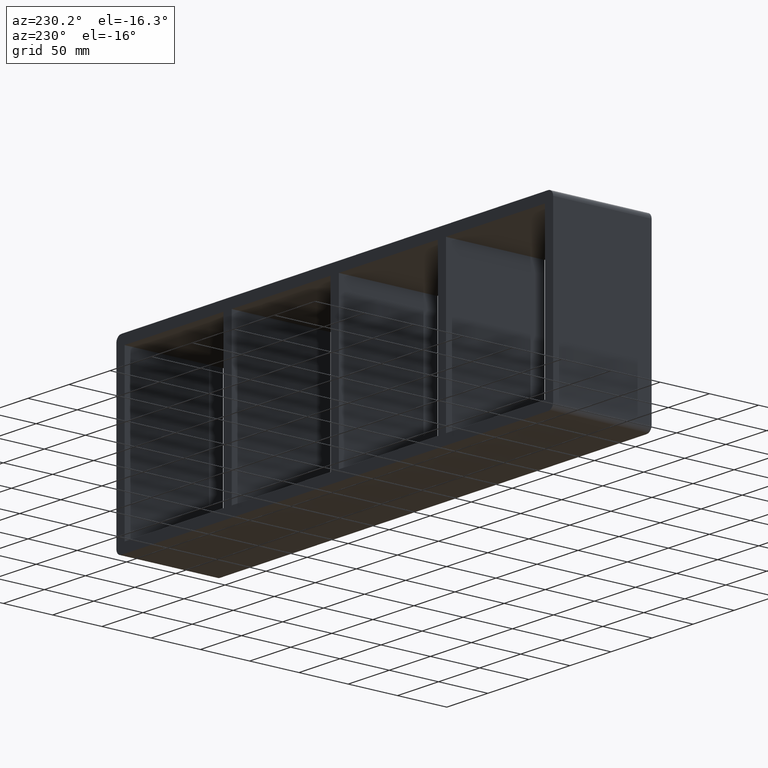
[diagram: clean part render]
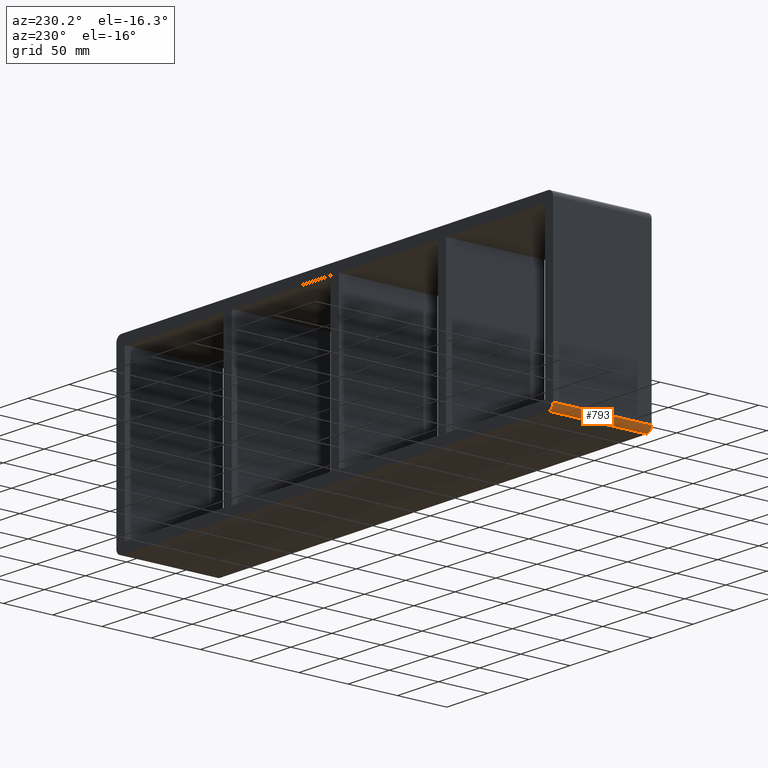
[diagram: same view with one face highlighted and labeled with its STEP entity id]
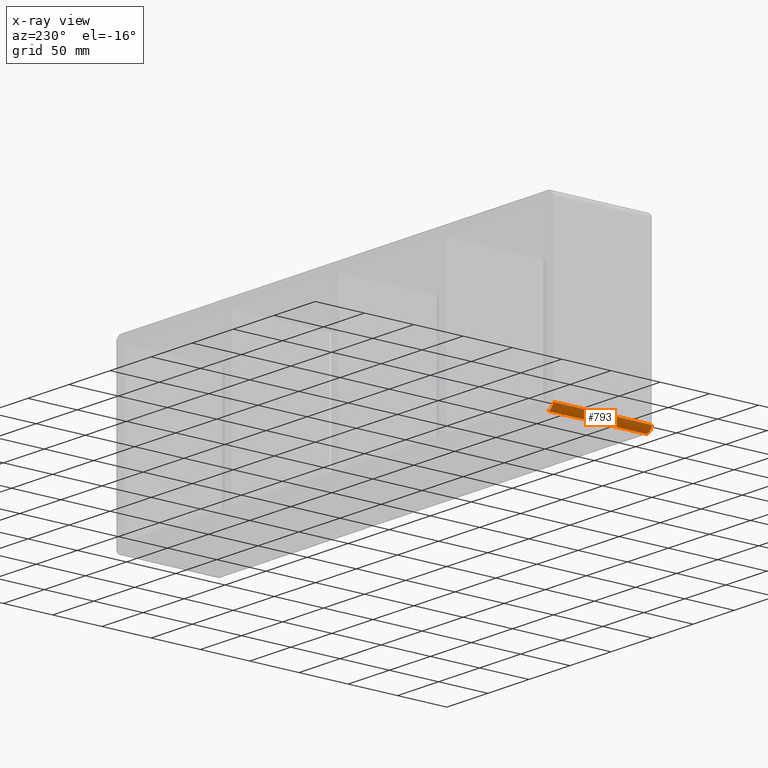
[diagram: x-ray of the same camera — body ghosted, the highlighted face saturated]
A machine part, auxiliary view. The second image highlights one B-rep face of the part: STEP entity #793.
The next image is the same camera in x-ray: the body ghosted, the highlighted face saturated — about 0% of this face is hidden behind the body in this view.
In plain terms, the highlighted cylindrical surface (edge-blend (fillet) strip) has radius 6 mm, axis along (0, 1, 0).
Its self-contained STEP definition (entity closure, byte-faithful):
#605=CARTESIAN_POINT('',(-266.00000000000006,-3.0,-83.75));
#606=VERTEX_POINT('',#605);
#613=CARTESIAN_POINT('',(-260.00000000000006,-3.0,-89.750000000000014));
#614=VERTEX_POINT('',#613);
#615=CARTESIAN_POINT('',(-260.00000000000006,-3.0,-83.75));
#616=DIRECTION('',(0.0,-1.0,0.0));
#617=DIRECTION('',(0.0,0.0,-1.0));
#618=AXIS2_PLACEMENT_3D('',#615,#616,#617);
#619=CIRCLE('',#618,6.000000000000001);
#620=EDGE_CURVE('',#606,#614,#619,.T.);
#751=CARTESIAN_POINT('',(-266.00000000000006,97.0,-83.75));
#752=VERTEX_POINT('',#751);
#759=CARTESIAN_POINT('',(-266.00000000000006,-3.0,-83.75));
#760=DIRECTION('',(0.0,1.0,0.0));
#761=VECTOR('',#760,100.0);
#762=LINE('',#759,#761);
#763=EDGE_CURVE('',#606,#752,#762,.T.);
#769=CARTESIAN_POINT('',(-260.00000000000006,0.0,-83.75));
#770=DIRECTION('',(0.0,1.0,0.0));
#771=DIRECTION('',(0.0,0.0,-1.0));
#772=AXIS2_PLACEMENT_3D('',#769,#770,#771);
#773=CYLINDRICAL_SURFACE('',#772,6.000000000000001);
#774=ORIENTED_EDGE('',*,*,#763,.T.);
#775=CARTESIAN_POINT('',(-260.00000000000006,97.0,-89.750000000000014));
#776=VERTEX_POINT('',#775);
#777=CARTESIAN_POINT('',(-260.00000000000006,97.0,-83.75));
#778=DIRECTION('',(0.0,1.0,0.0));
#779=DIRECTION('',(0.0,0.0,-1.0));
#780=AXIS2_PLACEMENT_3D('',#777,#778,#779);
#781=CIRCLE('',#780,6.000000000000001);
#782=EDGE_CURVE('',#776,#752,#781,.T.);
#783=ORIENTED_EDGE('',*,*,#782,.F.);
#784=CARTESIAN_POINT('',(-260.00000000000006,-3.0,-89.750000000000014));
#785=DIRECTION('',(0.0,1.0,0.0));
#786=VECTOR('',#785,100.0);
#787=LINE('',#784,#786);
#788=EDGE_CURVE('',#614,#776,#787,.T.);
#789=ORIENTED_EDGE('',*,*,#788,.F.);
#790=ORIENTED_EDGE('',*,*,#620,.F.);
#791=EDGE_LOOP('',(#774,#783,#789,#790));
#792=FACE_OUTER_BOUND('',#791,.T.);
#793=ADVANCED_FACE('',(#792),#773,.T.);